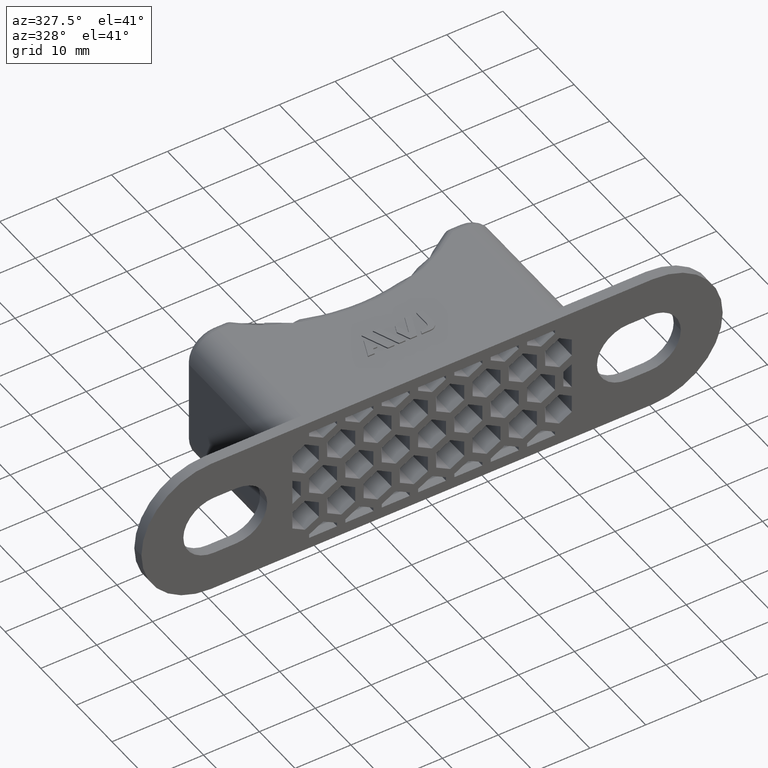
[diagram: clean part render]
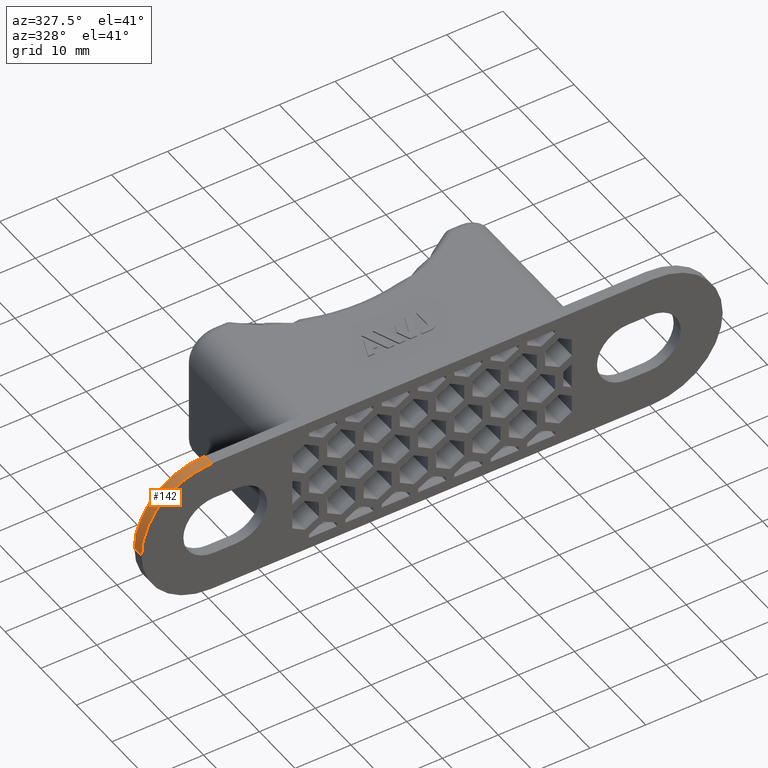
[diagram: same view with one face highlighted and labeled with its STEP entity id]
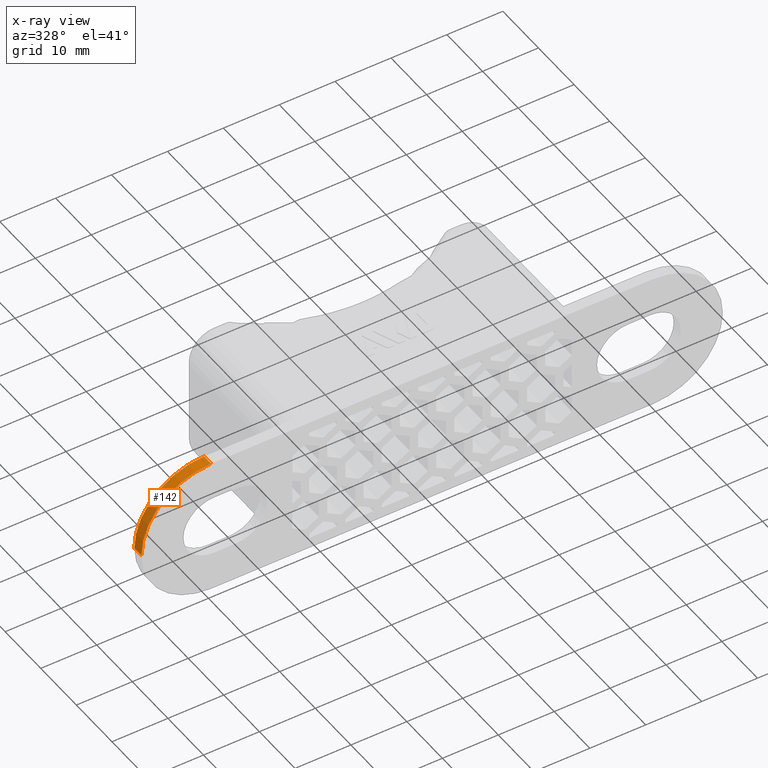
[diagram: x-ray of the same camera — body ghosted, the highlighted face saturated]
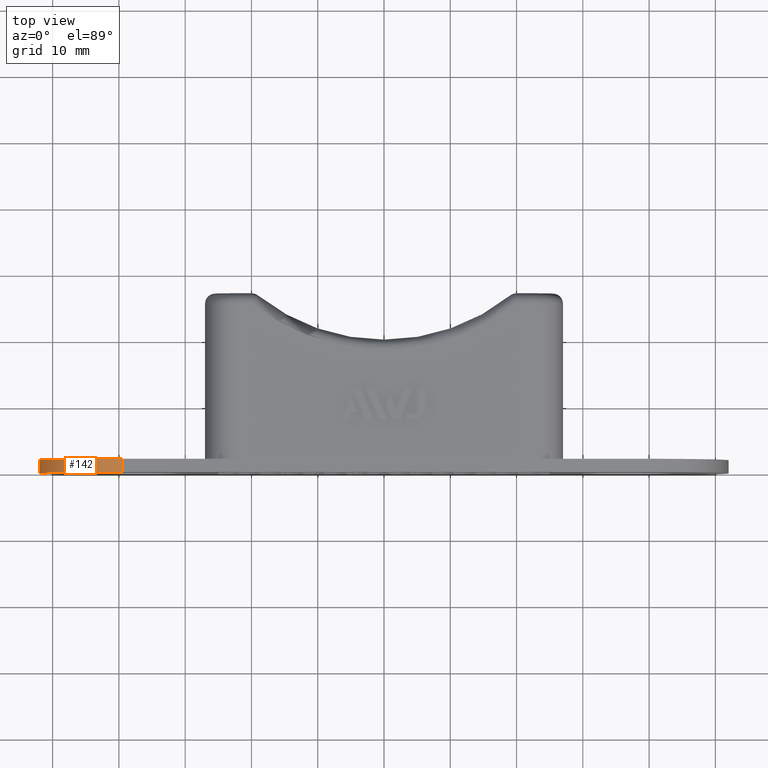
[diagram: same view with one face highlighted and labeled with its STEP entity id]
A machine part, auxiliary view. The second image highlights one B-rep face of the part: STEP entity #142.
The next image is the same camera in x-ray: the body ghosted, the highlighted face saturated — about 0% of this face is hidden behind the body in this view.
A second angle (top view) of the same face is appended — the face is thin or edge-on in the first view.
In plain terms, the highlighted cylindrical surface (partial cylindrical patch) has radius 12.5 mm, axis along (-0, -1, 0).
Its self-contained STEP definition (entity closure, byte-faithful):
#142 = ADVANCED_FACE( '', ( #604 ), #605, .T. );
#604 = FACE_OUTER_BOUND( '', #1344, .T. );
#605 = CYLINDRICAL_SURFACE( '', #1345, 12.5000000000000 );
#1344 = EDGE_LOOP( '', ( #2685, #2686, #2687, #2688 ) );
#1345 = AXIS2_PLACEMENT_3D( '', #2689, #2690, #2691 );
#2685 = ORIENTED_EDGE( '', *, *, #5033, .F. );
#2686 = ORIENTED_EDGE( '', *, *, #5020, .T. );
#2687 = ORIENTED_EDGE( '', *, *, #4846, .F. );
#2688 = ORIENTED_EDGE( '', *, *, #4715, .F. );
#2689 = CARTESIAN_POINT( '', ( -39.5000000000000, 50.5000000000000, 3.46944695195361E-015 ) );
#2690 = DIRECTION( '', ( -6.93889390390723E-017, -1.00000000000000, 0.000000000000000 ) );
#2691 = DIRECTION( '', ( -1.00000000000000, 6.93889390390723E-017, 0.000000000000000 ) );
#4715 = EDGE_CURVE( '', #5609, #5611, #5612, .T. );
#4846 = EDGE_CURVE( '', #5611, #5872, #5873, .T. );
#5020 = EDGE_CURVE( '', #6206, #5872, #6207, .T. );
#5033 = EDGE_CURVE( '', #6206, #5609, #6228, .T. );
#5609 = VERTEX_POINT( '', #7082 );
#5611 = VERTEX_POINT( '', #7085 );
#5612 = LINE( '', #7086, #7087 );
#5872 = VERTEX_POINT( '', #7471 );
#5873 = CIRCLE( '', #7472, 12.5000000000000 );
#6206 = VERTEX_POINT( '', #7958 );
#6207 = LINE( '', #7959, #7960 );
#6228 = CIRCLE( '', #7991, 12.5000000000000 );
#7082 = CARTESIAN_POINT( '', ( -39.5000000000000, 2.00000000000000, 12.5000000000000 ) );
#7085 = CARTESIAN_POINT( '', ( -39.5000000000000, 0.000000000000000, 12.5000000000000 ) );
#7086 = CARTESIAN_POINT( '', ( -39.5000000000000, 0.000000000000000, 12.5000000000000 ) );
#7087 = VECTOR( '', #9215, 1000.00000000000 );
#7471 = CARTESIAN_POINT( '', ( -52.0000000000000, 0.000000000000000, -3.46944695195361E-015 ) );
#7472 = AXIS2_PLACEMENT_3D( '', #9358, #9359, #9360 );
#7958 = CARTESIAN_POINT( '', ( -52.0000000000000, 2.00000000000000, -3.46944695195361E-015 ) );
#7959 = CARTESIAN_POINT( '', ( -52.0000000000000, 2.00000000000000, -3.46944695195361E-015 ) );
#7960 = VECTOR( '', #9574, 1000.00000000000 );
#7991 = AXIS2_PLACEMENT_3D( '', #9591, #9592, #9593 );
#9215 = DIRECTION( '', ( -6.93889390390723E-017, -1.00000000000000, 0.000000000000000 ) );
#9358 = CARTESIAN_POINT( '', ( -39.5000000000000, 0.000000000000000, 3.46944695195361E-015 ) );
#9359 = DIRECTION( '', ( 0.000000000000000, -1.00000000000000, 0.000000000000000 ) );
#9360 = DIRECTION( '', ( 0.000000000000000, 0.000000000000000, -1.00000000000000 ) );
#9574 = DIRECTION( '', ( -6.93889390390723E-017, -1.00000000000000, 0.000000000000000 ) );
#9591 = CARTESIAN_POINT( '', ( -39.5000000000000, 2.00000000000000, 3.46944695195361E-015 ) );
#9592 = DIRECTION( '', ( 0.000000000000000, 1.00000000000000, 0.000000000000000 ) );
#9593 = DIRECTION( '', ( 0.000000000000000, 0.000000000000000, 1.00000000000000 ) );